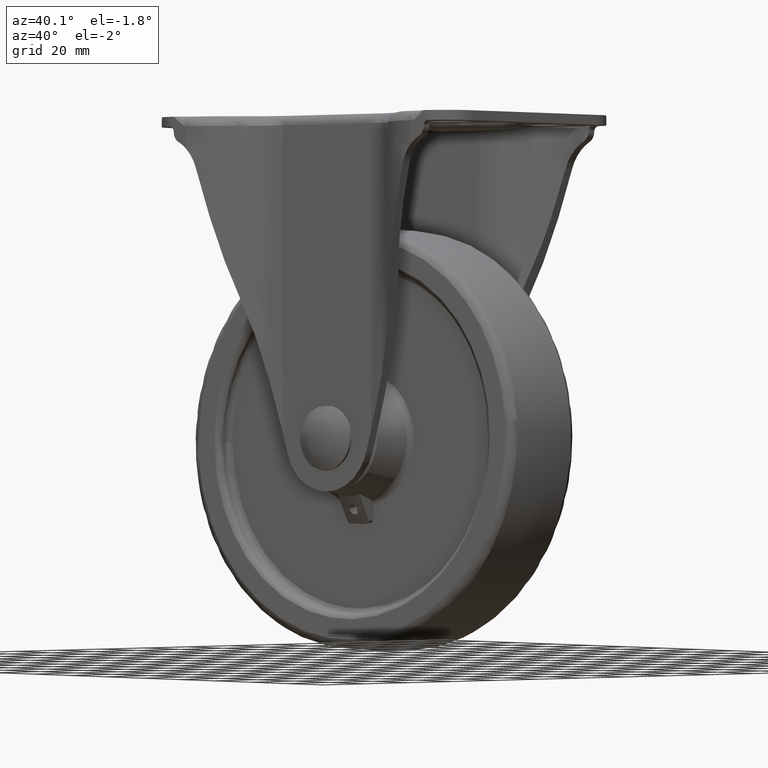
[diagram: clean part render]
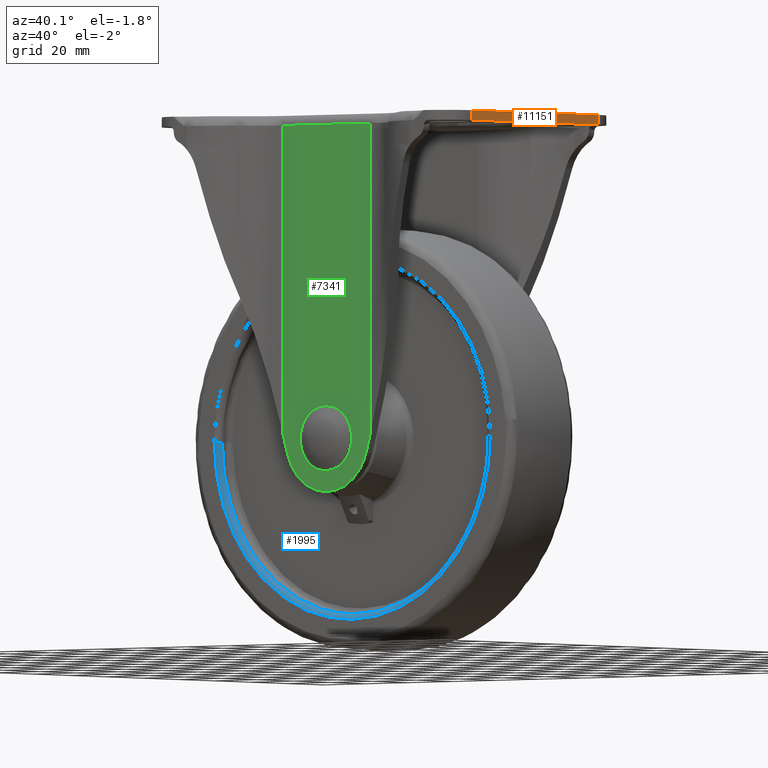
[diagram: same view with three faces highlighted in distinct colors, each labeled with its STEP entity id]
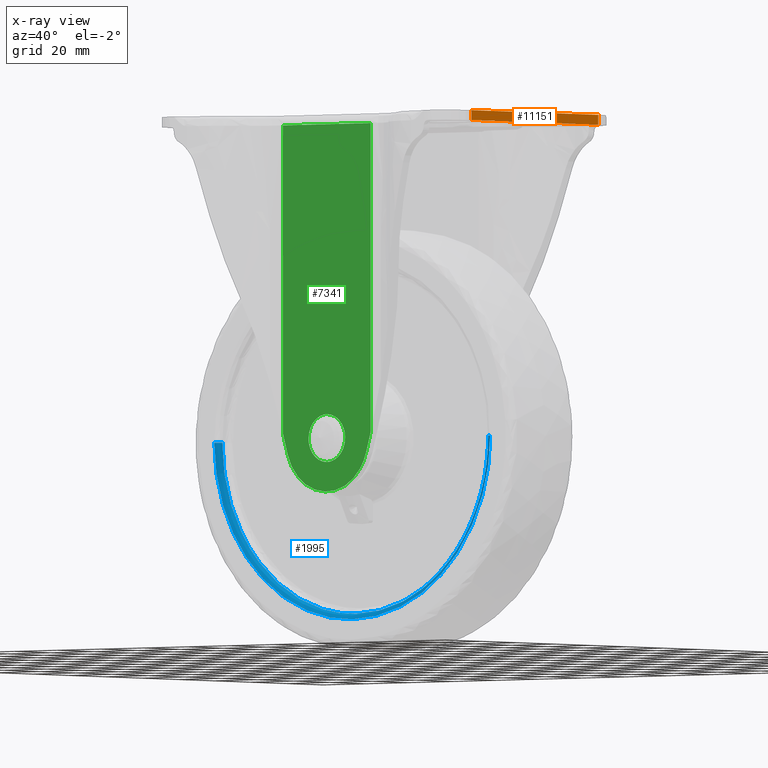
[diagram: x-ray of the same camera — body ghosted, the three highlighted faces saturated]
A machine part, auxiliary view with three faces highlighted in distinct colors.
The next image is the same camera in x-ray (body ghosted, the three faces saturated) — at least one of them is partly hidden behind the body in this view.
Their STEP definitions:

[orange] entity #11151 — the highlighted face is a freeform B-spline surface patch.
#7922=CARTESIAN_POINT('',(69.999996000000095,35.0,111.500000000000000));
#7923=VERTEX_POINT('',#7922);
#7937=CARTESIAN_POINT('',(69.999996000000095,-35.0,111.500000000000000));
#7938=VERTEX_POINT('',#7937);
#7939=CARTESIAN_POINT('',(69.999996000000095,35.0,111.500000000000000));
#7940=CARTESIAN_POINT('',(69.999996000000095,-35.0,111.500000000000000));
#7941=QUASI_UNIFORM_CURVE('',1,(#7939,#7940),.UNSPECIFIED.,.F.,.U.);
#7942=EDGE_CURVE('',#7923,#7938,#7941,.T.);
#11107=CARTESIAN_POINT('',(69.999996000000095,-35.0,115.0));
#11108=VERTEX_POINT('',#11107);
#11109=CARTESIAN_POINT('',(69.999996000000095,-35.0,111.500000000000000));
#11110=CARTESIAN_POINT('',(69.999996000000095,-35.0,115.0));
#11111=QUASI_UNIFORM_CURVE('',1,(#11109,#11110),.UNSPECIFIED.,.F.,.U.);
#11112=EDGE_CURVE('',#7938,#11108,#11111,.T.);
#11130=CARTESIAN_POINT('',(69.999996000000095,-38.496499864326417,111.325175006783700));
#11131=CARTESIAN_POINT('',(69.999996000000095,-38.496499864326417,115.174825087093590));
#11132=CARTESIAN_POINT('',(69.999996000000095,38.496501741872727,111.325175006783700));
#11133=CARTESIAN_POINT('',(69.999996000000095,38.496501741872727,115.174825087093590));
#11134=B_SPLINE_SURFACE_WITH_KNOTS('',1,1,((#11130,#11132),(#11131,#11133)),.UNSPECIFIED.,.F.,.F.,.U.,(2,2),(2,2),(0.0,3.849650080309971),(0.0,76.993001606199158),.UNSPECIFIED.);
#11135=CARTESIAN_POINT('',(69.999996000000095,35.0,115.0));
#11136=VERTEX_POINT('',#11135);
#11137=CARTESIAN_POINT('',(69.999996000000095,35.0,115.0));
#11138=CARTESIAN_POINT('',(69.999996000000095,-35.0,115.0));
#11139=QUASI_UNIFORM_CURVE('',1,(#11137,#11138),.UNSPECIFIED.,.F.,.U.);
#11140=EDGE_CURVE('',#11136,#11108,#11139,.T.);
#11141=ORIENTED_EDGE('',*,*,#11140,.T.);
#11142=ORIENTED_EDGE('',*,*,#11112,.F.);
#11143=ORIENTED_EDGE('',*,*,#7942,.F.);
#11144=CARTESIAN_POINT('',(69.999996000000095,35.0,111.500000000000000));
#11145=CARTESIAN_POINT('',(69.999996000000095,35.0,115.0));
#11146=QUASI_UNIFORM_CURVE('',1,(#11144,#11145),.UNSPECIFIED.,.F.,.U.);
#11147=EDGE_CURVE('',#7923,#11136,#11146,.T.);
#11148=ORIENTED_EDGE('',*,*,#11147,.T.);
#11149=EDGE_LOOP('',(#11141,#11142,#11143,#11148));
#11150=FACE_OUTER_BOUND('',#11149,.T.);
#11151=ADVANCED_FACE('',(#11150),#11134,.F.);

[blue] entity #1995 — the highlighted face is a freeform B-spline surface patch.
#1706=CARTESIAN_POINT('',(-44.973201963301541,-15.500000001582061,-42.677986427521233));
#1707=VERTEX_POINT('',#1706);
#1708=CARTESIAN_POINT('',(0.0,-15.500000000000000,-62.000000000000028));
#1709=VERTEX_POINT('',#1708);
#1710=CARTESIAN_POINT('',(-44.973201963301541,-15.500000001582057,-42.677986427521233));
#1711=CARTESIAN_POINT('',(-26.637297309651860,-15.500000000655287,-62.000000000000028));
#1712=CARTESIAN_POINT('',(0.0,-15.500000000000000,-62.000000000000028));
#1720=(BOUNDED_CURVE()B_SPLINE_CURVE(2,(#1710,#1711,#1712),.UNSPECIFIED.,.F.,.U.)B_SPLINE_CURVE_WITH_KNOTS((3,3),(0.871049520148539,1.0),.UNSPECIFIED.)CURVE()GEOMETRIC_REPRESENTATION_ITEM()RATIONAL_B_SPLINE_CURVE((0.853699661851557,0.848925115555066,1.0))REPRESENTATION_ITEM(''));
#1721=EDGE_CURVE('',#1707,#1709,#1720,.T.);
#1723=CARTESIAN_POINT('',(61.999985000000180,-15.500000003050429,-0.000014999999849));
#1724=VERTEX_POINT('',#1723);
#1725=CARTESIAN_POINT('',(0.0,-15.500000000000000,-62.000000000000028));
#1726=CARTESIAN_POINT('',(61.999985000000194,-15.500000001525221,-62.000000000000036));
#1727=CARTESIAN_POINT('',(61.999985000000180,-15.500000003050429,-0.000014999999849));
#1735=(BOUNDED_CURVE()B_SPLINE_CURVE(2,(#1725,#1726,#1727),.UNSPECIFIED.,.F.,.U.)B_SPLINE_CURVE_WITH_KNOTS((3,3),(0.0,0.250000000000000),.UNSPECIFIED.)CURVE()GEOMETRIC_REPRESENTATION_ITEM()RATIONAL_B_SPLINE_CURVE((1.0,0.707106781186547,1.0))REPRESENTATION_ITEM(''));
#1736=EDGE_CURVE('',#1709,#1724,#1735,.T.);
#1787=CARTESIAN_POINT('',(-61.999985000000180,-15.500000003050429,-0.000014999999842));
#1788=VERTEX_POINT('',#1787);
#1789=CARTESIAN_POINT('',(-61.999985000000180,-15.500000003050429,-0.000014999999842));
#1790=CARTESIAN_POINT('',(-61.999985000000194,-15.500000002441924,-24.735499315751927));
#1791=CARTESIAN_POINT('',(-44.973201963301577,-15.500000001581682,-42.677986427521297));
#1799=(BOUNDED_CURVE()B_SPLINE_CURVE(2,(#1789,#1790,#1791),.UNSPECIFIED.,.F.,.U.)B_SPLINE_CURVE_WITH_KNOTS((3,3),(0.750000000000000,0.871049520148539),.UNSPECIFIED.)CURVE()GEOMETRIC_REPRESENTATION_ITEM()RATIONAL_B_SPLINE_CURVE((1.0,0.858181665631482,0.853699661851557))REPRESENTATION_ITEM(''));
#1800=EDGE_CURVE('',#1788,#1707,#1799,.T.);
#1867=CARTESIAN_POINT('',(63.999984998990023,-17.500000000000000,-0.000014999999849));
#1868=VERTEX_POINT('',#1867);
#1884=CARTESIAN_POINT('',(-63.999984998990023,-17.500000000000000,-0.000014999999842));
#1885=VERTEX_POINT('',#1884);
#1899=CARTESIAN_POINT('',(-63.999984998990023,-17.500000000000004,-0.000014999999835));
#1900=CARTESIAN_POINT('',(-61.999985003050597,-17.499999998989857,-0.000014999999837));
#1901=CARTESIAN_POINT('',(-61.999985000000166,-15.500000003050426,-0.000014999999835));
#1909=(BOUNDED_CURVE()B_SPLINE_CURVE(2,(#1899,#1900,#1901),.UNSPECIFIED.,.F.,.U.)B_SPLINE_CURVE_WITH_KNOTS((3,3),(-1.726807298997675,-0.285995335594879),.UNSPECIFIED.)CURVE()GEOMETRIC_REPRESENTATION_ITEM()RATIONAL_B_SPLINE_CURVE((0.882788776032703,0.622603438110686,0.878205638504572))REPRESENTATION_ITEM(''));
#1910=EDGE_CURVE('',#1885,#1788,#1909,.T.);
#1915=CARTESIAN_POINT('',(63.999984998990023,-17.500000000000004,-0.000014999999849));
#1916=CARTESIAN_POINT('',(61.999985003050597,-17.499999998989857,-0.000014999999851));
#1917=CARTESIAN_POINT('',(61.999985000000166,-15.500000003050426,-0.000014999999849));
#1925=(BOUNDED_CURVE()B_SPLINE_CURVE(2,(#1915,#1916,#1917),.UNSPECIFIED.,.F.,.U.)B_SPLINE_CURVE_WITH_KNOTS((3,3),(-1.726807298997675,-0.285995335594879),.UNSPECIFIED.)CURVE()GEOMETRIC_REPRESENTATION_ITEM()RATIONAL_B_SPLINE_CURVE((0.882788776032703,0.622603438110686,0.878205638504572))REPRESENTATION_ITEM(''));
#1926=EDGE_CURVE('',#1868,#1724,#1925,.T.);
#1931=CARTESIAN_POINT('',(-64.138686263575963,-17.495184693075430,1.793093427771310));
#1932=CARTESIAN_POINT('',(-64.138686263575963,-17.495184693075426,0.901760521166732));
#1933=CARTESIAN_POINT('',(-64.138686263575948,-17.495184693075434,-64.138701263575769));
#1934=CARTESIAN_POINT('',(-7.854464E-015,-17.495184693075430,-64.138701263575811));
#1935=CARTESIAN_POINT('',(64.138686263575934,-17.495184693075434,-64.138701263575797));
#1936=CARTESIAN_POINT('',(64.138686263575963,-17.495184693075426,0.901760521166737));
#1937=CARTESIAN_POINT('',(64.138686263575963,-17.495184693075426,1.793093427771334));
#1938=CARTESIAN_POINT('',(-61.844506420944683,-17.654671503568430,1.728955643692921));
#1939=CARTESIAN_POINT('',(-61.844506420944683,-17.654671503568427,0.869504867929046));
#1940=CARTESIAN_POINT('',(-61.844506420944654,-17.654671503568430,-61.844521420944488));
#1941=CARTESIAN_POINT('',(-7.573518E-015,-17.654671503568444,-61.844521420944488));
#1942=CARTESIAN_POINT('',(61.844506420944633,-17.654671503568430,-61.844521420944510));
#1943=CARTESIAN_POINT('',(61.844506420944690,-17.654671503568441,0.869504867929050));
#1944=CARTESIAN_POINT('',(61.844506420944683,-17.654671503568441,1.728955643692944));
#1945=CARTESIAN_POINT('',(-62.004852390451198,-15.360551549616591,1.733438393902361));
#1946=CARTESIAN_POINT('',(-62.004852390451198,-15.360551549616597,0.871759296241227));
#1947=CARTESIAN_POINT('',(-62.004852390451184,-15.360551549616593,-62.004867390451025));
#1948=CARTESIAN_POINT('',(-7.593154E-015,-15.360551549616590,-62.004867390451047));
#1949=CARTESIAN_POINT('',(62.004852390451184,-15.360551549616593,-62.004867390451025));
#1950=CARTESIAN_POINT('',(62.004852390451205,-15.360551549616595,0.871759296241231));
#1951=CARTESIAN_POINT('',(62.004852390451205,-15.360551549616588,1.733438393902383));
#1959=(BOUNDED_SURFACE()B_SPLINE_SURFACE(2,2,((#1931,#1938,#1945),(#1932,#1939,#1946),(#1933,#1940,#1947),(#1934,#1941,#1948),(#1935,#1942,#1949),(#1936,#1943,#1950),(#1937,#1944,#1951)),.UNSPECIFIED.,.F.,.F.,.U.)B_SPLINE_SURFACE_WITH_KNOTS((3,1,2,1,3),(3,3),(0.0,2.125369097853243,108.393823990517600,214.662278883182010,216.787647981035290),(0.0,3.645454517540546),.UNSPECIFIED.)GEOMETRIC_REPRESENTATION_ITEM()RATIONAL_B_SPLINE_SURFACE(((0.920730318469245,0.602530283667150,0.915630244211508),(0.915399262344060,0.599041615275418,0.910328717669053),(0.643515399959645,0.421119527297086,0.639950864003831),(0.910068206218876,0.595552946883686,0.905027191126598),(0.643515399959645,0.421119527297086,0.639950864003831),(0.915399262344060,0.599041615275418,0.910328717669053),(0.920730318469245,0.602530283667150,0.915630244211508)))REPRESENTATION_ITEM('')SURFACE());
#1960=CARTESIAN_POINT('',(0.0,-17.500000000000000,-64.000000000000028));
#1961=VERTEX_POINT('',#1960);
#1962=CARTESIAN_POINT('',(0.0,-17.500000000000000,-64.000000000000028));
#1963=CARTESIAN_POINT('',(63.999984999495105,-17.499999999999996,-64.000000000000043));
#1964=CARTESIAN_POINT('',(63.999984998990023,-17.500000000000000,-0.000014999999849));
#1972=(BOUNDED_CURVE()B_SPLINE_CURVE(2,(#1962,#1963,#1964),.UNSPECIFIED.,.F.,.U.)B_SPLINE_CURVE_WITH_KNOTS((3,3),(0.0,0.250000000000000),.UNSPECIFIED.)CURVE()GEOMETRIC_REPRESENTATION_ITEM()RATIONAL_B_SPLINE_CURVE((1.0,0.707106781186548,1.0))REPRESENTATION_ITEM(''));
#1973=EDGE_CURVE('',#1961,#1868,#1972,.T.);
#1974=ORIENTED_EDGE('',*,*,#1973,.T.);
#1975=ORIENTED_EDGE('',*,*,#1926,.T.);
#1976=ORIENTED_EDGE('',*,*,#1736,.F.);
#1977=ORIENTED_EDGE('',*,*,#1721,.F.);
#1978=ORIENTED_EDGE('',*,*,#1800,.F.);
#1979=ORIENTED_EDGE('',*,*,#1910,.F.);
#1980=CARTESIAN_POINT('',(-63.999984998990023,-17.500000000000000,-0.000014999999842));
#1981=CARTESIAN_POINT('',(-63.999984999495105,-17.499999999999996,-64.000000000000043));
#1982=CARTESIAN_POINT('',(0.0,-17.500000000000000,-64.000000000000028));
#1990=(BOUNDED_CURVE()B_SPLINE_CURVE(2,(#1980,#1981,#1982),.UNSPECIFIED.,.F.,.U.)B_SPLINE_CURVE_WITH_KNOTS((3,3),(0.750000000000000,1.0),.UNSPECIFIED.)CURVE()GEOMETRIC_REPRESENTATION_ITEM()RATIONAL_B_SPLINE_CURVE((1.0,0.707106781186548,1.0))REPRESENTATION_ITEM(''));
#1991=EDGE_CURVE('',#1885,#1961,#1990,.T.);
#1992=ORIENTED_EDGE('',*,*,#1991,.T.);
#1993=EDGE_LOOP('',(#1974,#1975,#1976,#1977,#1978,#1979,#1992));
#1994=FACE_OUTER_BOUND('',#1993,.T.);
#1995=ADVANCED_FACE('',(#1994),#1959,.T.);

[green] entity #7341 — the highlighted face is a freeform B-spline surface patch.
#4632=CARTESIAN_POINT('',(-8.499691345468888,-31.500000000000000,-0.074175683254413));
#4633=VERTEX_POINT('',#4632);
#4639=CARTESIAN_POINT('',(0.0,-31.500000000000000,-8.500014999999999));
#4640=VERTEX_POINT('',#4639);
#4641=CARTESIAN_POINT('',(0.0,-31.500000000000000,-8.500014999999999));
#4642=CARTESIAN_POINT('',(-8.426160159110612,-31.500000000000000,-8.500014999999999));
#4643=CARTESIAN_POINT('',(-8.499691345468889,-31.499999999999996,-0.074175683254414));
#4651=(BOUNDED_CURVE()B_SPLINE_CURVE(2,(#4641,#4642,#4643),.UNSPECIFIED.,.F.,.U.)B_SPLINE_CURVE_WITH_KNOTS((3,3),(0.500000000000000,0.748460105652160),.UNSPECIFIED.)CURVE()GEOMETRIC_REPRESENTATION_ITEM()RATIONAL_B_SPLINE_CURVE((1.0,0.708910879635233,0.996414028070661))REPRESENTATION_ITEM(''));
#4652=EDGE_CURVE('',#4640,#4633,#4651,.T.);
#4654=CARTESIAN_POINT('',(8.499691345468888,-31.500000000000000,0.074175683254415));
#4655=VERTEX_POINT('',#4654);
#4656=CARTESIAN_POINT('',(8.499691345468889,-31.500000000000004,0.074175683254415));
#4657=CARTESIAN_POINT('',(8.500014999999999,-31.500000000000004,0.037088547736345));
#4658=CARTESIAN_POINT('',(8.500014999999999,-31.500000000000000,0.0));
#4659=CARTESIAN_POINT('',(8.500014999999999,-31.500000000000000,-8.500014999999999));
#4660=CARTESIAN_POINT('',(0.0,-31.500000000000000,-8.500014999999999));
#4668=(BOUNDED_CURVE()B_SPLINE_CURVE(2,(#4656,#4657,#4658,#4659,#4660),.UNSPECIFIED.,.F.,.U.)B_SPLINE_CURVE_WITH_KNOTS((3,2,3),(0.248460105652160,0.250000000000000,0.500000000000000),.UNSPECIFIED.)CURVE()GEOMETRIC_REPRESENTATION_ITEM()RATIONAL_B_SPLINE_CURVE((0.996414028070661,0.998195901551314,1.0,0.707106781186548,1.0))REPRESENTATION_ITEM(''));
#4669=EDGE_CURVE('',#4655,#4640,#4668,.T.);
#4745=CARTESIAN_POINT('',(0.0,-31.500000000000000,8.500014999999999));
#4746=VERTEX_POINT('',#4745);
#4747=CARTESIAN_POINT('',(0.0,-31.500000000000000,8.500014999999999));
#4748=CARTESIAN_POINT('',(8.426160159110610,-31.499999999999996,8.500014999999999));
#4749=CARTESIAN_POINT('',(8.499691345468889,-31.500000000000004,0.074175683254415));
#4757=(BOUNDED_CURVE()B_SPLINE_CURVE(2,(#4747,#4748,#4749),.UNSPECIFIED.,.F.,.U.)B_SPLINE_CURVE_WITH_KNOTS((3,3),(0.0,0.248460105652160),.UNSPECIFIED.)CURVE()GEOMETRIC_REPRESENTATION_ITEM()RATIONAL_B_SPLINE_CURVE((1.0,0.708910879635233,0.996414028070661))REPRESENTATION_ITEM(''));
#4758=EDGE_CURVE('',#4746,#4655,#4757,.T.);
#4760=CARTESIAN_POINT('',(-8.499691345468889,-31.499999999999996,-0.074175683254414));
#4761=CARTESIAN_POINT('',(-8.500015000000001,-31.500000000000000,-0.037088547736345));
#4762=CARTESIAN_POINT('',(-8.500014999999999,-31.500000000000000,0.0));
#4763=CARTESIAN_POINT('',(-8.500014999999999,-31.500000000000000,8.500014999999999));
#4764=CARTESIAN_POINT('',(0.0,-31.500000000000000,8.500014999999999));
#4772=(BOUNDED_CURVE()B_SPLINE_CURVE(2,(#4760,#4761,#4762,#4763,#4764),.UNSPECIFIED.,.F.,.U.)B_SPLINE_CURVE_WITH_KNOTS((3,2,3),(0.748460105652160,0.750000000000000,1.0),.UNSPECIFIED.)CURVE()GEOMETRIC_REPRESENTATION_ITEM()RATIONAL_B_SPLINE_CURVE((0.996414028070661,0.998195901551314,1.0,0.707106781186548,1.0))REPRESENTATION_ITEM(''));
#4773=EDGE_CURVE('',#4633,#4746,#4772,.T.);
#5992=CARTESIAN_POINT('',(-20.381176492475149,-31.500000000000000,1.996358825266940));
#5993=VERTEX_POINT('',#5992);
#6068=CARTESIAN_POINT('',(-18.235146394250201,-31.500000000000000,-5.336611486835760));
#6069=VERTEX_POINT('',#6068);
#6075=CARTESIAN_POINT('',(-20.381176492475149,-31.500000000000000,1.996358825266940));
#6076=CARTESIAN_POINT('',(-18.235146394250201,-31.500000000000000,-5.336611486835760));
#6077=QUASI_UNIFORM_CURVE('',1,(#6075,#6076),.UNSPECIFIED.,.F.,.U.);
#6078=EDGE_CURVE('',#5993,#6069,#6077,.T.);
#6126=CARTESIAN_POINT('',(18.235150115479549,-31.500000000000000,-5.336611354427750));
#6127=VERTEX_POINT('',#6126);
#6133=CARTESIAN_POINT('',(-18.235146394250201,-31.500000000000000,-5.336611486835760));
#6134=CARTESIAN_POINT('',(-17.860024028955038,-31.499999999999961,-6.619230851115273));
#6135=CARTESIAN_POINT('',(-17.007775130983688,-31.500000000000131,-8.690329242854508));
#6136=CARTESIAN_POINT('',(-15.468205967928149,-31.499999999999890,-11.113209858323360));
#6137=CARTESIAN_POINT('',(-13.650773755520740,-31.500000000000089,-13.330805107598261));
#6138=CARTESIAN_POINT('',(-11.215589230755160,-31.499999999999918,-15.503448598402381));
#6139=CARTESIAN_POINT('',(-8.222600265242960,-31.500000000000011,-17.226766653613240));
#6140=CARTESIAN_POINT('',(-4.995656927366722,-31.500000000000000,-18.429224801212570));
#6141=CARTESIAN_POINT('',(-1.788501631808218,-31.500000000000011,-19.032380207072009));
#6142=CARTESIAN_POINT('',(1.851904640565283,-31.499999999999989,-19.014015198982719));
#6143=CARTESIAN_POINT('',(5.055872225056110,-31.500000000000011,-18.411513736675190));
#6144=CARTESIAN_POINT('',(7.926228097678195,-31.499999999999989,-17.341840024776040));
#6145=CARTESIAN_POINT('',(10.218532965455530,-31.500000000000028,-16.082424015373370));
#6146=CARTESIAN_POINT('',(12.480185783145210,-31.500000000000000,-14.423114253292750));
#6147=CARTESIAN_POINT('',(14.516724105974861,-31.499999999999979,-12.393398418125109));
#6148=CARTESIAN_POINT('',(16.708503671757640,-31.500000000000011,-9.331912499219641));
#6149=CARTESIAN_POINT('',(17.770876791478400,-31.500000000000021,-6.924687329753991));
#6150=CARTESIAN_POINT('',(18.235150115479549,-31.500000000000000,-5.336611354427750));
#6151=B_SPLINE_CURVE_WITH_KNOTS('',3,(#6133,#6134,#6135,#6136,#6137,#6138,#6139,#6140,#6141,#6142,#6143,#6144,#6145,#6146,#6147,#6148,#6149,#6150),.UNSPECIFIED.,.F.,.U.,(4,1,1,1,1,1,1,1,1,1,1,1,1,1,1,4),(0.000000284965267,4.009005771654564,6.681616858649619,8.590715525014673,12.599737355106200,16.417854013535241,18.899641459659321,22.908710538298461,26.153903614013519,29.781158309444962,32.644717129811632,35.317430415216222,37.608294615415453,41.044632265710291,43.908189377185757,48.871688518843399),.UNSPECIFIED.);
#6152=EDGE_CURVE('',#6069,#6127,#6151,.T.);
#6164=CARTESIAN_POINT('',(20.381172492475301,-31.500000000000000,1.996332771809105));
#6165=VERTEX_POINT('',#6164);
#6179=CARTESIAN_POINT('',(18.235150115479549,-31.500000000000000,-5.336611354427750));
#6180=CARTESIAN_POINT('',(20.381172492475301,-31.500000000000000,1.996332771809105));
#6181=QUASI_UNIFORM_CURVE('',1,(#6179,#6180),.UNSPECIFIED.,.F.,.U.);
#6182=EDGE_CURVE('',#6127,#6165,#6181,.T.);
#7287=CARTESIAN_POINT('',(-20.381176492475149,-31.500000000000000,111.500000000000000));
#7288=VERTEX_POINT('',#7287);
#7289=CARTESIAN_POINT('',(-20.381176492475149,-31.500000000000000,1.996358825266940));
#7290=CARTESIAN_POINT('',(-20.381176492475149,-31.500000000000000,111.500000000000000));
#7291=QUASI_UNIFORM_CURVE('',1,(#7289,#7290),.UNSPECIFIED.,.F.,.U.);
#7292=EDGE_CURVE('',#5993,#7288,#7291,.T.);
#7312=CARTESIAN_POINT('',(-22.417255745268079,-31.500000000000000,-25.518479993434390));
#7313=CARTESIAN_POINT('',(-22.417255745268079,-31.500000000000000,118.018478496937700));
#7314=CARTESIAN_POINT('',(22.417252838599641,-31.500000000000000,-25.518479993434390));
#7315=CARTESIAN_POINT('',(22.417252838599641,-31.500000000000000,118.018478496937700));
#7316=B_SPLINE_SURFACE_WITH_KNOTS('',1,1,((#7312,#7314),(#7313,#7315)),.UNSPECIFIED.,.F.,.F.,.U.,(2,2),(2,2),(0.0,143.536958490372090),(0.0,44.834508583867724),.UNSPECIFIED.);
#7317=CARTESIAN_POINT('',(20.381172492475301,-31.500000000000000,111.500000000000000));
#7318=VERTEX_POINT('',#7317);
#7319=CARTESIAN_POINT('',(20.381172492475301,-31.500000000000000,1.996332771809105));
#7320=CARTESIAN_POINT('',(20.381172492475301,-31.500000000000000,111.500000000000000));
#7321=QUASI_UNIFORM_CURVE('',1,(#7319,#7320),.UNSPECIFIED.,.F.,.U.);
#7322=EDGE_CURVE('',#6165,#7318,#7321,.T.);
#7323=ORIENTED_EDGE('',*,*,#7322,.T.);
#7324=CARTESIAN_POINT('',(20.381172492475301,-31.500000000000000,111.500000000000000));
#7325=CARTESIAN_POINT('',(-20.381176492475149,-31.500000000000000,111.500000000000000));
#7326=QUASI_UNIFORM_CURVE('',1,(#7324,#7325),.UNSPECIFIED.,.F.,.U.);
#7327=EDGE_CURVE('',#7318,#7288,#7326,.T.);
#7328=ORIENTED_EDGE('',*,*,#7327,.T.);
#7329=ORIENTED_EDGE('',*,*,#7292,.F.);
#7330=ORIENTED_EDGE('',*,*,#6078,.T.);
#7331=ORIENTED_EDGE('',*,*,#6152,.T.);
#7332=ORIENTED_EDGE('',*,*,#6182,.T.);
#7333=EDGE_LOOP('',(#7323,#7328,#7329,#7330,#7331,#7332));
#7334=FACE_OUTER_BOUND('',#7333,.T.);
#7335=ORIENTED_EDGE('',*,*,#4758,.T.);
#7336=ORIENTED_EDGE('',*,*,#4669,.T.);
#7337=ORIENTED_EDGE('',*,*,#4652,.T.);
#7338=ORIENTED_EDGE('',*,*,#4773,.T.);
#7339=EDGE_LOOP('',(#7335,#7336,#7337,#7338));
#7340=FACE_BOUND('',#7339,.T.);
#7341=ADVANCED_FACE('',(#7334,#7340),#7316,.F.);